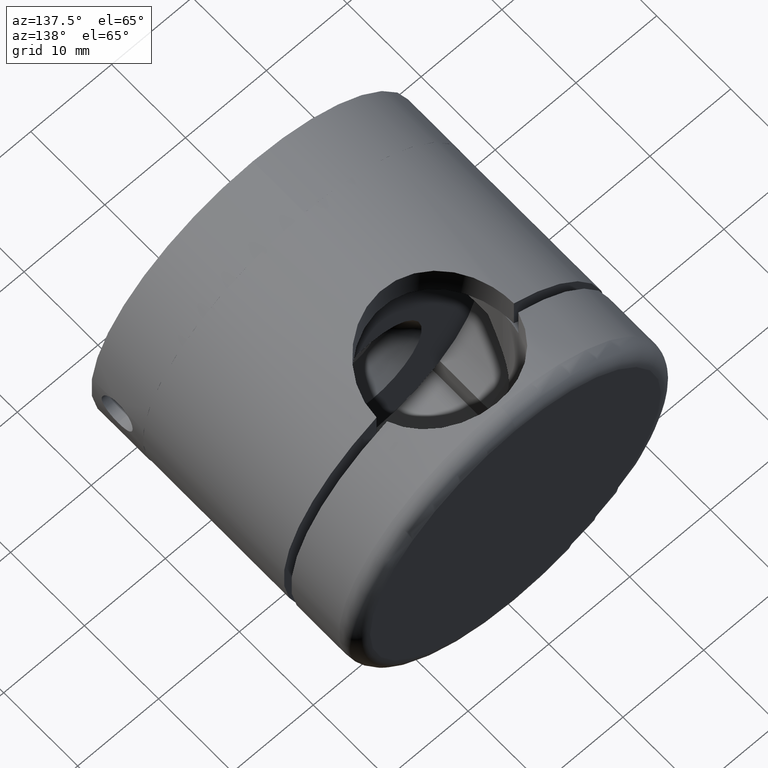
[diagram: clean part render]
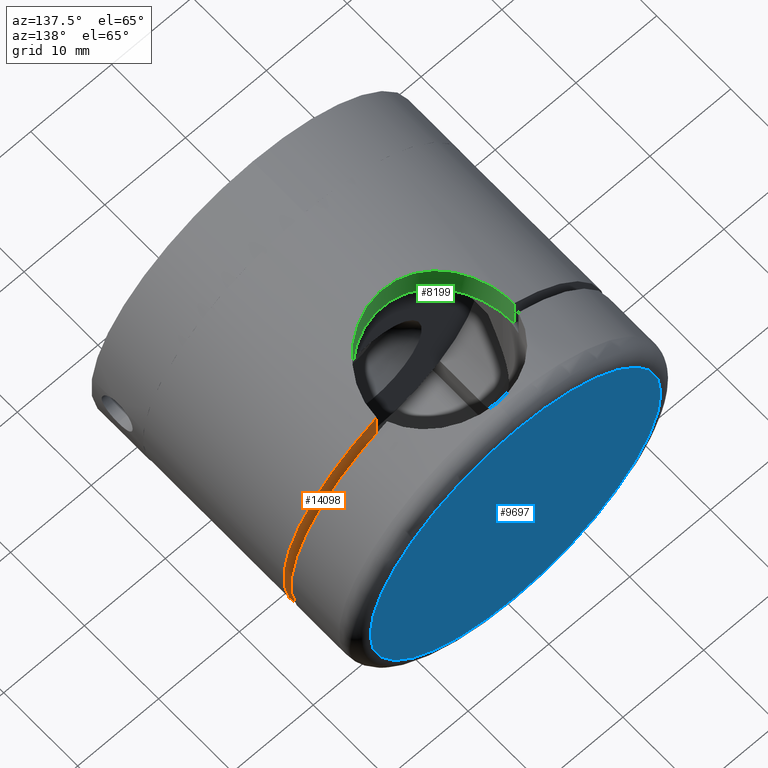
[diagram: same view with three faces highlighted in distinct colors, each labeled with its STEP entity id]
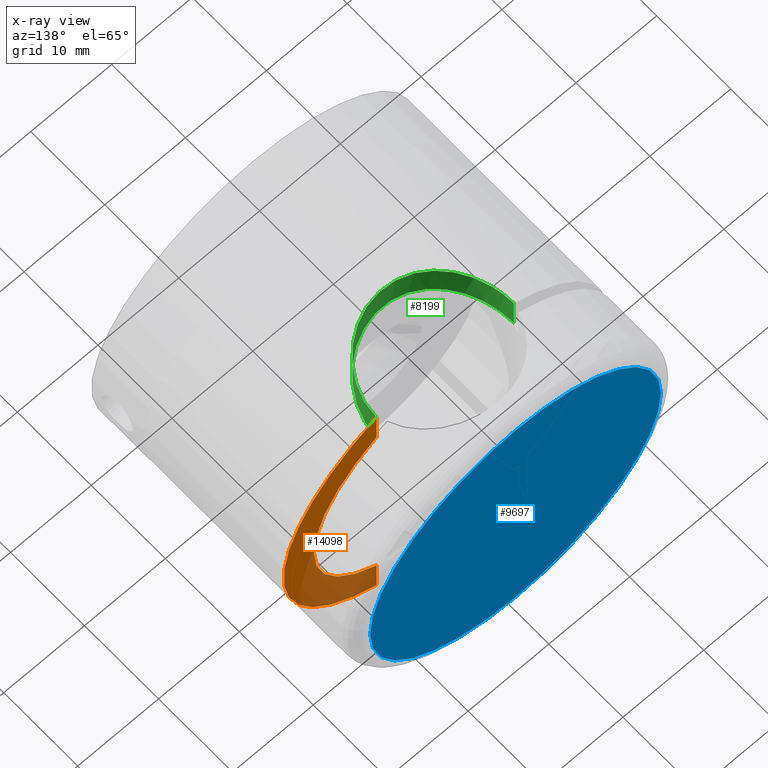
[diagram: x-ray of the same camera — body ghosted, the three highlighted faces saturated]
A machine part, auxiliary view with three faces highlighted in distinct colors.
The next image is the same camera in x-ray (body ghosted, the three faces saturated) — at least one of them is partly hidden behind the body in this view.
Their STEP definitions:

[orange] entity #14098 — the highlighted planar face has unit normal (0, -1, 0).
#636 = CARTESIAN_POINT ( 'NONE',  ( 0.0000000000000000000, 0.0000000000000000000, 0.0000000000000000000 ) ) ;
#2061 = DIRECTION ( 'NONE',  ( 0.0000000000000000000, 1.000000000000000000, 0.0000000000000000000 ) ) ;
#2245 = ORIENTED_EDGE ( 'NONE', *, *, #9062, .T. ) ;
#2408 = CARTESIAN_POINT ( 'NONE',  ( -8.499999999999976900, -7.640860524588816100E-007, -18.10386699023168300 ) ) ;
#2485 = ORIENTED_EDGE ( 'NONE', *, *, #6803, .T. ) ;
#3186 = VECTOR ( 'NONE', #15987, 1000.000000000000000 ) ;
#3189 = CARTESIAN_POINT ( 'NONE',  ( -8.499999999999976900, -7.640860524588816100E-007, 18.10386699023168300 ) ) ;
#3603 = DIRECTION ( 'NONE',  ( 0.0000000000000000000, 1.000000000000000000, 0.0000000000000000000 ) ) ;
#4064 = CARTESIAN_POINT ( 'NONE',  ( -8.500000000000019500, 0.0000000000000000000, 13.84963898446453000 ) ) ;
#5829 = AXIS2_PLACEMENT_3D ( 'NONE', #636, #2061, #11541 ) ;
#5893 = DIRECTION ( 'NONE',  ( 0.0000000000000000000, 1.000000000000000000, 0.0000000000000000000 ) ) ;
#6603 = LINE ( 'NONE', #8882, #15648 ) ;
#6635 = CARTESIAN_POINT ( 'NONE',  ( -8.499999999999976900, -7.640860524588816100E-007, -20.00000000000000000 ) ) ;
#6753 = LINE ( 'NONE', #6635, #3186 ) ;
#6803 = EDGE_CURVE ( 'NONE', #7703, #16905, #13359, .T. ) ;
#7703 = VERTEX_POINT ( 'NONE', #10482 ) ;
#8470 = ORIENTED_EDGE ( 'NONE', *, *, #15733, .F. ) ;
#8554 = CARTESIAN_POINT ( 'NONE',  ( 0.0000000000000000000, 0.0000000000000000000, 0.0000000000000000000 ) ) ;
#8728 = DIRECTION ( 'NONE',  ( 0.0000000000000000000, -0.0000000000000000000, 1.000000000000000000 ) ) ;
#8882 = CARTESIAN_POINT ( 'NONE',  ( -8.499999999999976900, -7.640860524588816100E-007, -20.00000000000000000 ) ) ;
#9062 = EDGE_CURVE ( 'NONE', #14724, #7703, #6753, .T. ) ;
#10482 = CARTESIAN_POINT ( 'NONE',  ( -8.499999999999976900, -7.640860524588816100E-007, -13.84963898446455700 ) ) ;
#10490 = DIRECTION ( 'NONE',  ( -0.0000000000000000000, -0.0000000000000000000, 1.000000000000000000 ) ) ;
#10860 = AXIS2_PLACEMENT_3D ( 'NONE', #13002, #3603, #11616 ) ;
#11541 = DIRECTION ( 'NONE',  ( 0.0000000000000000000, 0.0000000000000000000, 1.000000000000000000 ) ) ;
#11616 = DIRECTION ( 'NONE',  ( 0.0000000000000000000, 0.0000000000000000000, 1.000000000000000000 ) ) ;
#11903 = FACE_OUTER_BOUND ( 'NONE', #14248, .T. ) ;
#12663 = PLANE ( 'NONE',  #16734 ) ;
#13002 = CARTESIAN_POINT ( 'NONE',  ( 0.0000000000000000000, 0.0000000000000000000, 0.0000000000000000000 ) ) ;
#13127 = ORIENTED_EDGE ( 'NONE', *, *, #14709, .T. ) ;
#13359 = CIRCLE ( 'NONE', #10860, 16.25000000000000000 ) ;
#14010 = VERTEX_POINT ( 'NONE', #3189 ) ;
#14098 = ADVANCED_FACE ( 'NONE', ( #11903 ), #12663, .F. ) ;
#14248 = EDGE_LOOP ( 'NONE', ( #8470, #2245, #2485, #13127 ) ) ;
#14709 = EDGE_CURVE ( 'NONE', #16905, #14010, #6603, .T. ) ;
#14724 = VERTEX_POINT ( 'NONE', #2408 ) ;
#15648 = VECTOR ( 'NONE', #10490, 1000.000000000000000 ) ;
#15733 = EDGE_CURVE ( 'NONE', #14724, #14010, #15734, .T. ) ;
#15734 = CIRCLE ( 'NONE', #5829, 20.00000000000000000 ) ;
#15987 = DIRECTION ( 'NONE',  ( -0.0000000000000000000, -0.0000000000000000000, 1.000000000000000000 ) ) ;
#16734 = AXIS2_PLACEMENT_3D ( 'NONE', #8554, #5893, #8728 ) ;
#16905 = VERTEX_POINT ( 'NONE', #4064 ) ;

[blue] entity #9697 — the highlighted planar face has unit normal (0, 1, 0).
#378 = AXIS2_PLACEMENT_3D ( 'NONE', #15484, #898, #10326 ) ;
#898 = DIRECTION ( 'NONE',  ( 0.0000000000000000000, -1.000000000000000000, 0.0000000000000000000 ) ) ;
#2429 = CIRCLE ( 'NONE', #10201, 18.00000000000000400 ) ;
#4743 = DIRECTION ( 'NONE',  ( 0.0000000000000000000, 0.0000000000000000000, -1.000000000000000000 ) ) ;
#5949 = CARTESIAN_POINT ( 'NONE',  ( 0.0000000000000000000, 1.500000000000000000, 0.0000000000000000000 ) ) ;
#6858 = VERTEX_POINT ( 'NONE', #16944 ) ;
#8828 = ORIENTED_EDGE ( 'NONE', *, *, #11921, .T. ) ;
#8967 = PLANE ( 'NONE',  #378 ) ;
#9456 = FACE_OUTER_BOUND ( 'NONE', #15448, .T. ) ;
#9697 = ADVANCED_FACE ( 'NONE', ( #9456 ), #8967, .T. ) ;
#10141 = DIRECTION ( 'NONE',  ( 0.0000000000000000000, -1.000000000000000000, 0.0000000000000000000 ) ) ;
#10201 = AXIS2_PLACEMENT_3D ( 'NONE', #5949, #10141, #4743 ) ;
#10326 = DIRECTION ( 'NONE',  ( 0.0000000000000000000, -0.0000000000000000000, -1.000000000000000000 ) ) ;
#11921 = EDGE_CURVE ( 'NONE', #6858, #6858, #2429, .T. ) ;
#15448 = EDGE_LOOP ( 'NONE', ( #8828 ) ) ;
#15484 = CARTESIAN_POINT ( 'NONE',  ( 0.0000000000000000000, 1.500000000000000000, 0.0000000000000000000 ) ) ;
#16944 = CARTESIAN_POINT ( 'NONE',  ( 0.0000000000000000000, 1.500000000000000000, -18.00000000000000400 ) ) ;

[green] entity #8199 — the highlighted cylindrical surface (partial cylindrical patch) has radius 8.5 mm, axis along (0, 0, 1).
#95 = CARTESIAN_POINT ( 'NONE',  ( -6.740060041460914400, 5.186268837170237200, 18.83098142379282800 ) ) ;
#156 = CARTESIAN_POINT ( 'NONE',  ( -8.443504392803626900, 1.126480023909546300, 18.13068840180294200 ) ) ;
#220 = CARTESIAN_POINT ( 'NONE',  ( -3.044419932239369200, 7.940918235848546800, 15.96439565447294300 ) ) ;
#271 = CARTESIAN_POINT ( 'NONE',  ( -8.500000000000019500, 0.0000000000000000000, 13.84963898446453000 ) ) ;
#388 = ORIENTED_EDGE ( 'NONE', *, *, #14709, .F. ) ;
#440 = CARTESIAN_POINT ( 'NONE',  ( -1.140538446973511600, 8.441914083903276000, 16.21940800330598300 ) ) ;
#500 = CARTESIAN_POINT ( 'NONE',  ( 0.2700833509574933600, 8.500445167631847100, 16.25023285669385200 ) ) ;
#563 = CARTESIAN_POINT ( 'NONE',  ( 1.953247837865440100, 8.277308524747018800, 16.13456155015392600 ) ) ;
#641 = CARTESIAN_POINT ( 'NONE',  ( 8.500000000000012400, 2.400058654795349200E-007, 18.10386699023166600 ) ) ;
#1437 = CARTESIAN_POINT ( 'NONE',  ( 4.275568023860976100, 7.367018107161071900, 19.54331829759027900 ) ) ;
#1482 = CARTESIAN_POINT ( 'NONE',  ( -3.027517355881631300, 7.947367062587124700, 19.77121733785059700 ) ) ;
#1536 = CARTESIAN_POINT ( 'NONE',  ( -6.390329171489912400, 5.611549420071636300, 18.95251866707256000 ) ) ;
#1552 = CARTESIAN_POINT ( 'NONE',  ( -4.292819007088092500, 7.356973236554203800, 15.67999772823250400 ) ) ;
#1598 = CARTESIAN_POINT ( 'NONE',  ( -4.969679717966968700, 6.901402297819887900, 19.37417236130023900 ) ) ;
#1717 = CARTESIAN_POINT ( 'NONE',  ( 6.398413920312656000, 5.621972099360209400, 14.94303355618917300 ) ) ;
#1787 = CARTESIAN_POINT ( 'NONE',  ( 1.123044246282169000, 8.430272554987556800, 16.21361837249518300 ) ) ;
#1847 = CARTESIAN_POINT ( 'NONE',  ( 7.942310987657078800, 3.040644780484841500, 14.17734239812473600 ) ) ;
#1906 = CARTESIAN_POINT ( 'NONE',  ( 5.195497587691990700, 6.732926543015164400, 15.39869610628022700 ) ) ;
#1943 = AXIS2_PLACEMENT_3D ( 'NONE', #17078, #3753, #9209 ) ;
#2093 = ORIENTED_EDGE ( 'NONE', *, *, #10105, .T. ) ;
#2846 = CARTESIAN_POINT ( 'NONE',  ( -2.230110781636494500, 8.207022693539146400, 19.87711169744659400 ) ) ;
#2965 = CARTESIAN_POINT ( 'NONE',  ( -7.363247620549483200, 4.282063424749966700, 14.49004335591300400 ) ) ;
#3010 = CARTESIAN_POINT ( 'NONE',  ( 6.746514283084108500, 5.199941379888799500, 18.83063703258042700 ) ) ;
#3028 = CARTESIAN_POINT ( 'NONE',  ( -6.737869404444845500, 5.188985629009343900, 14.78849291981611600 ) ) ;
#3189 = CARTESIAN_POINT ( 'NONE',  ( -8.499999999999976900, -7.640860524588816100E-007, 18.10386699023168300 ) ) ;
#3200 = CARTESIAN_POINT ( 'NONE',  ( 7.622130831201384500, 3.802159861847044500, 14.35357052392691400 ) ) ;
#3317 = CARTESIAN_POINT ( 'NONE',  ( 7.208519383226655600, 4.512589016648896700, 18.65648238033653100 ) ) ;
#3753 = DIRECTION ( 'NONE',  ( -0.0000000000000000000, -0.0000000000000000000, 1.000000000000000000 ) ) ;
#4064 = CARTESIAN_POINT ( 'NONE',  ( -8.500000000000019500, 0.0000000000000000000, 13.84963898446453000 ) ) ;
#4103 = EDGE_CURVE ( 'NONE', #14010, #10959, #13820, .T. ) ;
#4259 = CARTESIAN_POINT ( 'NONE',  ( -1.129531640534815700, 8.443293049089751500, 19.97571137794387000 ) ) ;
#4324 = CARTESIAN_POINT ( 'NONE',  ( -0.5733452631142347300, 8.499257685382065800, 19.99968451650720500 ) ) ;
#4401 = CARTESIAN_POINT ( 'NONE',  ( -6.208522829451255600, 5.811899618560506300, 15.01863831683614200 ) ) ;
#4519 = CARTESIAN_POINT ( 'NONE',  ( 8.500000000000012400, 2.400058654795349200E-007, 13.84963898446453500 ) ) ;
#4578 = CARTESIAN_POINT ( 'NONE',  ( 3.028905845787061700, 7.946945267864135700, 15.96739121292461900 ) ) ;
#4639 = CARTESIAN_POINT ( 'NONE',  ( 0.5575894543927689700, 8.486449064881840700, 16.24289823610216700 ) ) ;
#4689 = CARTESIAN_POINT ( 'NONE',  ( 8.037232161873607300, 2.780470239866471300, 14.12354426583494900 ) ) ;
#5448 = CARTESIAN_POINT ( 'NONE',  ( -8.500000000000019500, 0.5687659857117053400, 18.10386699023166600 ) ) ;
#5555 = CARTESIAN_POINT ( 'NONE',  ( -3.792924332163200200, 7.626909156474877900, 19.64386190272265900 ) ) ;
#5570 = CARTESIAN_POINT ( 'NONE',  ( -8.052693399292122600, 2.776912854631172800, 14.11653343310046100 ) ) ;
#5613 = CARTESIAN_POINT ( 'NONE',  ( 1.395348061086256100, 8.389350416605095600, 19.95316293721591800 ) ) ;
#5901 = CARTESIAN_POINT ( 'NONE',  ( 7.361725829991794300, 4.284890509427121700, 14.49084663178017100 ) ) ;
#5936 = CYLINDRICAL_SURFACE ( 'NONE', #1943, 8.500000000000017800 ) ;
#5963 = CARTESIAN_POINT ( 'NONE',  ( 2.762464221162083800, 8.043489456876773900, 16.01577872208027000 ) ) ;
#6603 = LINE ( 'NONE', #8882, #15648 ) ;
#6850 = CARTESIAN_POINT ( 'NONE',  ( -5.824376552488693900, 6.196819399890648200, 15.17174645156503100 ) ) ;
#6905 = CARTESIAN_POINT ( 'NONE',  ( -5.622895416904475100, 6.380292248643931100, 15.24781181880865200 ) ) ;
#6946 = CARTESIAN_POINT ( 'NONE',  ( -8.499999999999976900, -7.640860524588816100E-007, 18.10386699023168300 ) ) ;
#7073 = ORIENTED_EDGE ( 'NONE', *, *, #16173, .T. ) ;
#7140 = B_SPLINE_CURVE_WITH_KNOTS ( 'NONE', 3,
 ( #271, #12396, #12337, #10948, #5570, #9735, #2965, #11113, #3028, #14957, #4401, #6850, #6905, #8261, #13786, #1552, #15024, #220, #11224, #11292, #8565, #440, #14023, #500, #4639, #1787, #9852, #563, #9911, #5963, #4578, #15372, #16542, #8673, #1906, #13846, #16658, #1717, #16600, #5901, #3200, #1847, #4689, #12621, #7315, #11351, #16728, #4519 ),
 .UNSPECIFIED., .F., .F.,
 ( 4, 2, 2, 2, 2, 2, 2, 2, 2, 2, 2, 2, 2, 2, 2, 2, 2, 2, 2, 2, 2, 2, 2, 4 ),
 ( 0.0000000000000000000, 0.001691801818361255400, 0.003383603636722510900, 0.005075405455083767400, 0.005921306364264395000, 0.006767207273445021700, 0.007613108182625649400, 0.008459009091806276100, 0.01015081091016752800, 0.01099671181934815300, 0.01184261272852878000, 0.01353441454689003100, 0.01438031545607065800, 0.01522621636525128100, 0.01607211727443190800, 0.01691801818361253500, 0.01860982000197378800, 0.01945572091115441200, 0.02030162182033503500, 0.02199342363869628500, 0.02368522545705753500, 0.02453112636623815800, 0.02537702727541878500, 0.02706882909378002800 ),
 .UNSPECIFIED. ) ;
#7168 = CARTESIAN_POINT ( 'NONE',  ( 8.500000000000012400, 2.400058654795349200E-007, 18.10386699023166600 ) ) ;
#7188 = VERTEX_POINT ( 'NONE', #16403 ) ;
#7229 = CARTESIAN_POINT ( 'NONE',  ( 7.352998448923449000, 4.273192386674287100, 18.59982447735791700 ) ) ;
#7297 = CARTESIAN_POINT ( 'NONE',  ( 8.218643597551031000, 2.241379830583992000, 18.23373642608345300 ) ) ;
#7315 = CARTESIAN_POINT ( 'NONE',  ( 8.273194718250765700, 1.970927600636225500, 13.98646029484137500 ) ) ;
#7320 = LINE ( 'NONE', #14824, #17225 ) ;
#8146 = CARTESIAN_POINT ( 'NONE',  ( -7.629004903843887000, 3.789039810589934600, 18.48925257829700200 ) ) ;
#8199 = ADVANCED_FACE ( 'NONE', ( #9738 ), #5936, .F. ) ;
#8261 = CARTESIAN_POINT ( 'NONE',  ( -5.200290223917082100, 6.729194872686001400, 15.39706789353994100 ) ) ;
#8309 = CARTESIAN_POINT ( 'NONE',  ( -5.616674669457480300, 6.385807022240634000, 19.19639362909833500 ) ) ;
#8371 = CARTESIAN_POINT ( 'NONE',  ( 5.622398032431254600, 6.398427425956961100, 19.19776565219189000 ) ) ;
#8565 = CARTESIAN_POINT ( 'NONE',  ( -1.967839219327221600, 8.273862105699803800, 16.13279237418496200 ) ) ;
#8673 = CARTESIAN_POINT ( 'NONE',  ( 4.973135509228340500, 6.898821825910307100, 15.47215185359586100 ) ) ;
#8882 = CARTESIAN_POINT ( 'NONE',  ( -8.499999999999976900, -7.640860524588816100E-007, -20.00000000000000000 ) ) ;
#9209 = DIRECTION ( 'NONE',  ( 1.000000000000000000, 0.0000000000000000000, 0.0000000000000000000 ) ) ;
#9484 = CARTESIAN_POINT ( 'NONE',  ( 2.217916397446996900, 8.224574964739028700, 19.88425700137152700 ) ) ;
#9545 = CARTESIAN_POINT ( 'NONE',  ( -7.367986938638447100, 4.274140942728061900, 18.59626277504554200 ) ) ;
#9612 = CARTESIAN_POINT ( 'NONE',  ( -8.045823084360817400, 2.755642994243488800, 18.31045647143646300 ) ) ;
#9720 = CARTESIAN_POINT ( 'NONE',  ( -5.819338631456798100, 6.201626722365890700, 19.13573682450517700 ) ) ;
#9735 = CARTESIAN_POINT ( 'NONE',  ( -7.623959349269640900, 3.798994580925700000, 14.35261756584944900 ) ) ;
#9738 = FACE_OUTER_BOUND ( 'NONE', #14874, .T. ) ;
#9839 = CARTESIAN_POINT ( 'NONE',  ( 8.443153730019942000, 1.132714094449973400, 18.13086875278455800 ) ) ;
#9852 = CARTESIAN_POINT ( 'NONE',  ( 1.402120189043193400, 8.388269935180510100, 16.19176681240527700 ) ) ;
#9897 = CARTESIAN_POINT ( 'NONE',  ( 8.499999983935236300, 0.5689472912127597800, 18.10386699777429000 ) ) ;
#9911 = CARTESIAN_POINT ( 'NONE',  ( 2.225298934138365300, 8.208347937911199200, 16.09920561088535600 ) ) ;
#10105 = EDGE_CURVE ( 'NONE', #7188, #10959, #7320, .T. ) ;
#10490 = DIRECTION ( 'NONE',  ( -0.0000000000000000000, -0.0000000000000000000, 1.000000000000000000 ) ) ;
#10866 = CARTESIAN_POINT ( 'NONE',  ( -6.906301905464066400, 4.962798814393588400, 18.77045681842097500 ) ) ;
#10933 = CARTESIAN_POINT ( 'NONE',  ( -2.766115245539234800, 8.042214995822563500, 19.80963326211606200 ) ) ;
#10948 = CARTESIAN_POINT ( 'NONE',  ( -8.220499268797757600, 2.233354074249762200, 14.01793960798715400 ) ) ;
#10959 = VERTEX_POINT ( 'NONE', #641 ) ;
#10984 = CARTESIAN_POINT ( 'NONE',  ( -1.954853601107585000, 8.276914111441602300, 19.90614902721538800 ) ) ;
#11102 = CARTESIAN_POINT ( 'NONE',  ( 6.398574892846969700, 5.622230207040033200, 18.95320038970183100 ) ) ;
#11113 = CARTESIAN_POINT ( 'NONE',  ( -6.902502933459320600, 4.968030185834523500, 14.71213856813573900 ) ) ;
#11224 = CARTESIAN_POINT ( 'NONE',  ( -2.782300295503275400, 8.036692505294755800, 16.01236236055419900 ) ) ;
#11272 = CARTESIAN_POINT ( 'NONE',  ( 8.054230834799327000, 2.772038597933519800, 18.30800494892374900 ) ) ;
#11292 = CARTESIAN_POINT ( 'NONE',  ( -2.243177577798439100, 8.203522152921928900, 16.09674183350508500 ) ) ;
#11351 = CARTESIAN_POINT ( 'NONE',  ( 8.442547272911296500, 1.137814289251726500, 13.88535866464112100 ) ) ;
#12084 = DIRECTION ( 'NONE',  ( -0.0000000000000000000, -0.0000000000000000000, 1.000000000000000000 ) ) ;
#12211 = CARTESIAN_POINT ( 'NONE',  ( 3.789111081022709500, 7.629380156840602100, 19.64480050782690400 ) ) ;
#12258 = CARTESIAN_POINT ( 'NONE',  ( 1.117525003387913800, 8.430967665273341200, 19.97074310302638600 ) ) ;
#12319 = CARTESIAN_POINT ( 'NONE',  ( -6.206165936074286900, 5.814497440453420700, 19.01380104813869600 ) ) ;
#12337 = CARTESIAN_POINT ( 'NONE',  ( -8.442659651962181000, 1.134009105079109500, 13.88527050808190900 ) ) ;
#12383 = CARTESIAN_POINT ( 'NONE',  ( -4.278301563340943600, 7.365759732384487900, 19.54280482610629800 ) ) ;
#12396 = CARTESIAN_POINT ( 'NONE',  ( -8.500000000000017800, 0.5731209837496423800, 13.84963898446453500 ) ) ;
#12429 = CARTESIAN_POINT ( 'NONE',  ( -5.192332462970369100, 6.735372986094174200, 19.31549239081926200 ) ) ;
#12546 = CARTESIAN_POINT ( 'NONE',  ( 7.734520903636313200, 3.536013924375792000, 18.44425672882279700 ) ) ;
#12621 = CARTESIAN_POINT ( 'NONE',  ( 8.202525328433028000, 2.246484768489038300, 14.02819238851782300 ) ) ;
#13491 = CARTESIAN_POINT ( 'NONE',  ( -7.950176894956530100, 3.020235415688145700, 18.35233586006516000 ) ) ;
#13665 = CARTESIAN_POINT ( 'NONE',  ( 0.2700035788042928800, 8.500360260938855100, 20.00015311079070900 ) ) ;
#13712 = CARTESIAN_POINT ( 'NONE',  ( -8.210138975111052100, 2.218660727988630600, 18.23737106346649400 ) ) ;
#13786 = CARTESIAN_POINT ( 'NONE',  ( -4.977968416968439900, 6.895336684848163400, 15.47059667194233200 ) ) ;
#13820 = B_SPLINE_CURVE_WITH_KNOTS ( 'NONE', 3,
 ( #6946, #5448, #156, #16183, #13712, #9612, #13491, #8146, #9545, #10866, #95, #1536, #12319, #9720, #8309, #12429, #1598, #12383, #5555, #1482, #10933, #2846, #10984, #4259, #4324, #13665, #15070, #12258, #5613, #9484, #15008, #12211, #1437, #16407, #8371, #11102, #3010, #3317, #7229, #16639, #12546, #11272, #7297, #9839, #9897, #7168 ),
 .UNSPECIFIED., .F., .F.,
 ( 4, 2, 2, 2, 2, 2, 2, 2, 2, 2, 2, 2, 2, 2, 2, 2, 2, 2, 2, 2, 2, 2, 4 ),
 ( 0.0000000000000000000, 0.001680255682291566200, 0.002520383523437350100, 0.003360511364583133700, 0.005040767046874703600, 0.005880894888020487200, 0.006721022729166270000, 0.007561150570312055400, 0.008401278411457839900, 0.01008153409374940700, 0.01092166193489518600, 0.01176178977604096900, 0.01344204545833253500, 0.01428217329947831800, 0.01512230114062410200, 0.01680255682291566600, 0.01848281250520723100, 0.02016306818749879400, 0.02184332386979035600, 0.02268345171093613700, 0.02352357955208191800, 0.02520383523437347300, 0.02688409091666502800 ),
 .UNSPECIFIED. ) ;
#13846 = CARTESIAN_POINT ( 'NONE',  ( 5.619482256923998200, 6.383330962864746100, 15.24908050084985500 ) ) ;
#14010 = VERTEX_POINT ( 'NONE', #3189 ) ;
#14023 = CARTESIAN_POINT ( 'NONE',  ( -0.5811602726622778800, 8.499076714267172200, 16.24951705099035900 ) ) ;
#14709 = EDGE_CURVE ( 'NONE', #16905, #14010, #6603, .T. ) ;
#14824 = CARTESIAN_POINT ( 'NONE',  ( 8.500000000000012400, 2.400058654795349200E-007, -20.00000000000000000 ) ) ;
#14874 = EDGE_LOOP ( 'NONE', ( #388, #7073, #2093, #15498 ) ) ;
#14957 = CARTESIAN_POINT ( 'NONE',  ( -6.391186815282856600, 5.610453373977368800, 14.94159088059100100 ) ) ;
#15008 = CARTESIAN_POINT ( 'NONE',  ( 2.753392838117537900, 8.061242599061593200, 19.81651779843391000 ) ) ;
#15024 = CARTESIAN_POINT ( 'NONE',  ( -3.809983900521940000, 7.618446251484360100, 15.80563848831322300 ) ) ;
#15070 = CARTESIAN_POINT ( 'NONE',  ( 0.5543076619291984500, 8.486626003424937900, 19.99430381974326200 ) ) ;
#15372 = CARTESIAN_POINT ( 'NONE',  ( 3.802623582357953900, 7.622525352085043300, 15.80759200409083800 ) ) ;
#15498 = ORIENTED_EDGE ( 'NONE', *, *, #4103, .F. ) ;
#15648 = VECTOR ( 'NONE', #10490, 1000.000000000000000 ) ;
#16173 = EDGE_CURVE ( 'NONE', #16905, #7188, #7140, .T. ) ;
#16183 = CARTESIAN_POINT ( 'NONE',  ( -8.278582317476589100, 1.947564050719388500, 18.20628275902045000 ) ) ;
#16403 = CARTESIAN_POINT ( 'NONE',  ( 8.500000000000012400, 2.400058654795349200E-007, 13.84963898446453500 ) ) ;
#16407 = CARTESIAN_POINT ( 'NONE',  ( 5.190666803842775700, 6.753548389505045400, 19.32042313561154900 ) ) ;
#16542 = CARTESIAN_POINT ( 'NONE',  ( 4.287746782987045300, 7.359925613768137300, 15.68138918018726900 ) ) ;
#16600 = CARTESIAN_POINT ( 'NONE',  ( 6.745047274279450300, 5.201887267279287700, 14.78796742522374100 ) ) ;
#16639 = CARTESIAN_POINT ( 'NONE',  ( 7.615662243335549400, 3.785293642352602500, 18.49382992713587000 ) ) ;
#16658 = CARTESIAN_POINT ( 'NONE',  ( 5.821408959818793200, 6.199618171141711500, 15.17288900841903200 ) ) ;
#16728 = CARTESIAN_POINT ( 'NONE',  ( 8.499999983804373800, 0.5735816947827635500, 13.84963899440435100 ) ) ;
#16905 = VERTEX_POINT ( 'NONE', #4064 ) ;
#17078 = CARTESIAN_POINT ( 'NONE',  ( -1.734723475976807100E-015, -1.409462824231155800E-015, -20.00000000000000000 ) ) ;
#17225 = VECTOR ( 'NONE', #12084, 1000.000000000000000 ) ;